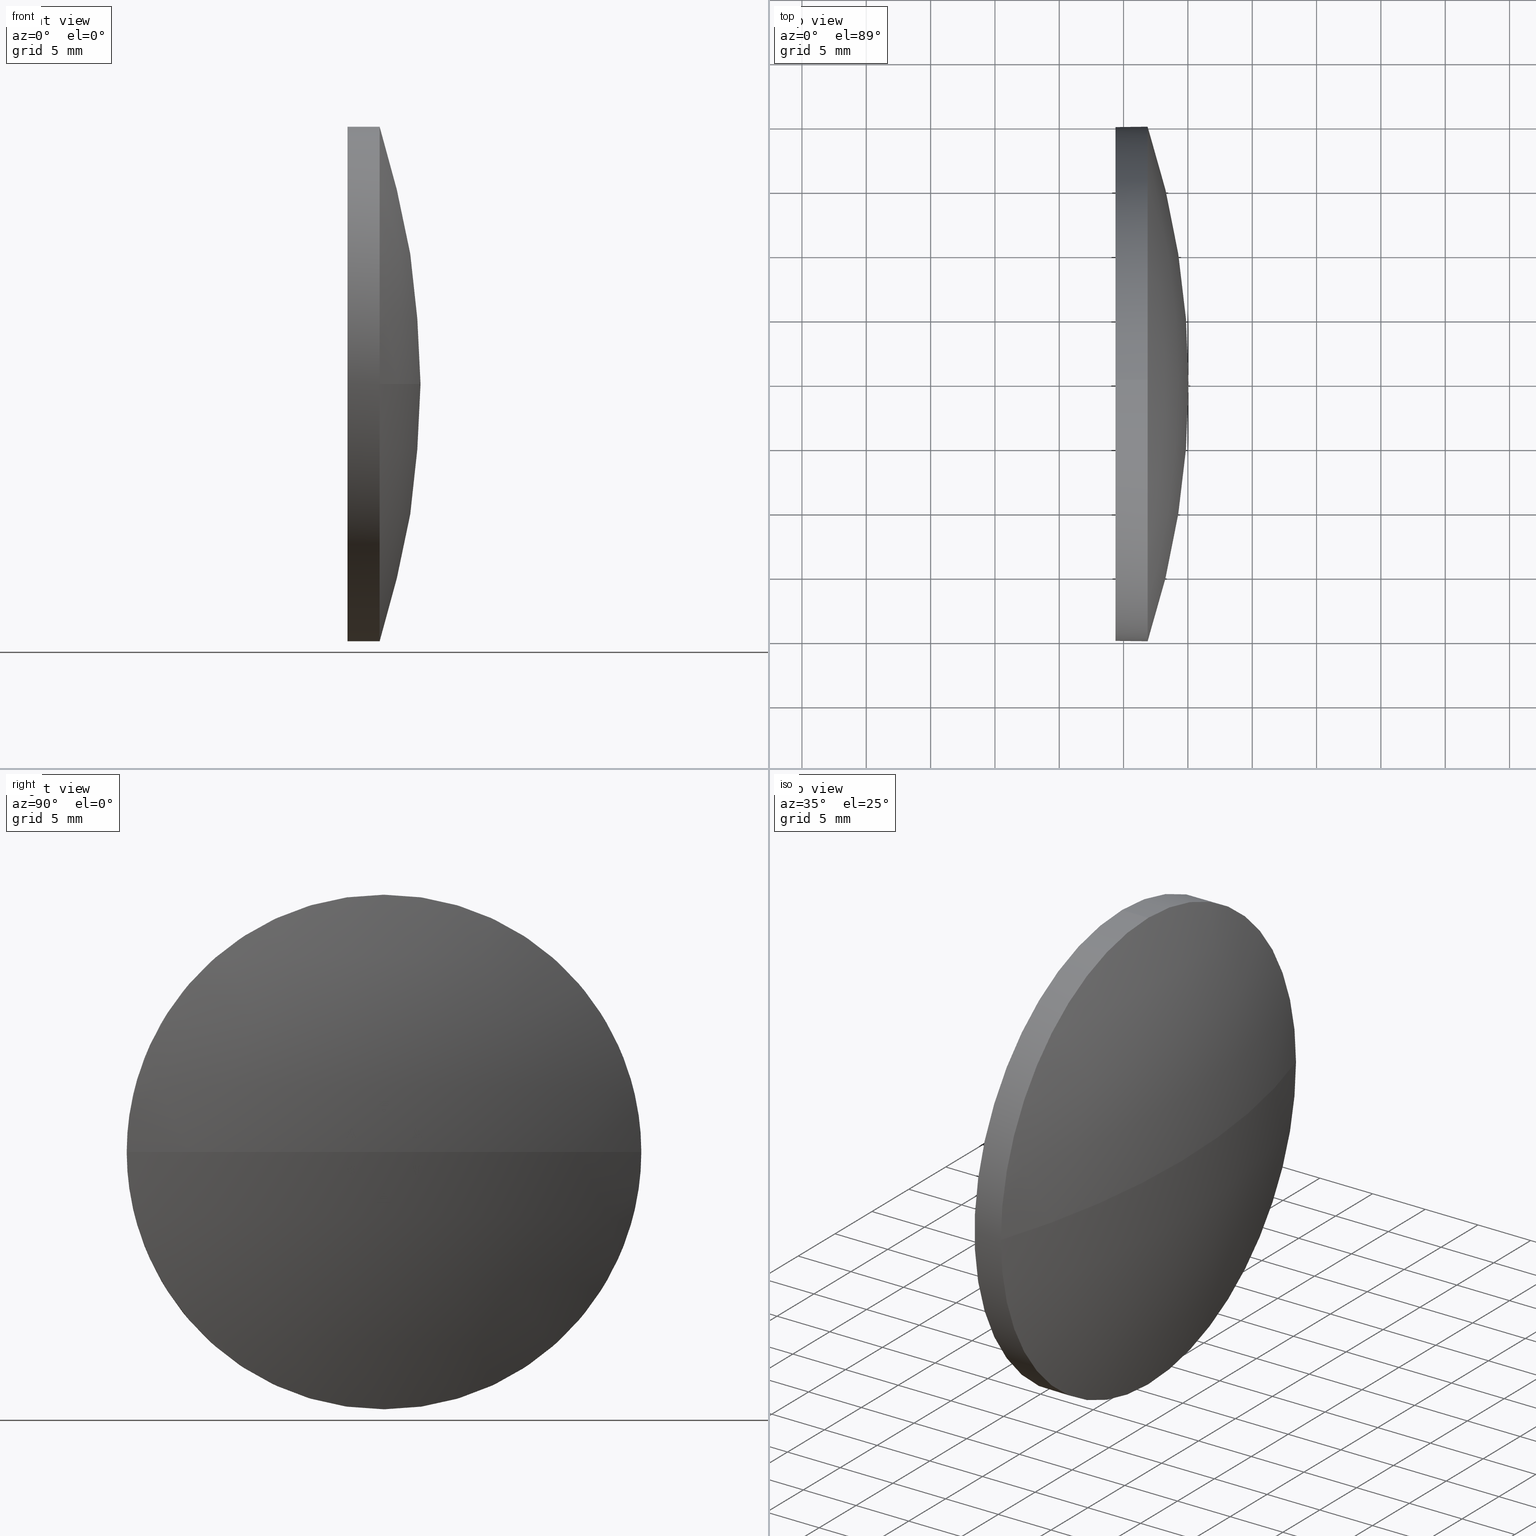
[diagram: canonical four-view strip — front | top / right | iso, engineering-drawing reading convention]
A machine part, canonical four-view strip (front | top / right | iso — engineering-drawing reading convention). The complete STEP part file that produces these views, byte-faithful:
ISO-10303-21;
HEADER;
FILE_DESCRIPTION (( 'STEP AP214' ),
    '1' );
FILE_NAME ('100231.STEP',
    '2019-05-24T07:55:41',
    ( '' ),
    ( '' ),
    'SwSTEP 2.0',
    'SolidWorks 2016',
    '' );
FILE_SCHEMA (( 'AUTOMOTIVE_DESIGN' ));
ENDSEC;

DATA;
#1 = SURFACE_STYLE_FILL_AREA ( #177 ) ;
#2 = PRODUCT ( '100231', '100231', '', ( #98 ) ) ;
#3 = VERTEX_POINT ( 'NONE', #56 ) ;
#4 = SURFACE_SIDE_STYLE ('',( #1 ) ) ;
#5 = VECTOR ( 'NONE', #137, 1000.000000000000000 ) ;
#6 = VERTEX_POINT ( 'NONE', #153 ) ;
#7 = AXIS2_PLACEMENT_3D ( 'NONE', #27, #105, #63 ) ;
#8 = ORIENTED_EDGE ( 'NONE', *, *, #154, .T. ) ;
#9 = DIRECTION ( 'NONE',  ( -1.000000000000000000, -0.0000000000000000000, -0.0000000000000000000 ) ) ;
#10 = CARTESIAN_POINT ( 'NONE',  ( 515.4038089794889900, 34.81724702676228800, 0.0000000000000000000 ) ) ;
#11 = CARTESIAN_POINT ( 'NONE',  ( 460.5656808294688700, 34.81724702676224600, 0.0000000000000000000 ) ) ;
#12 = COLOUR_RGB ( '',1.000000000000000000, 1.000000000000000000, 1.000000000000000000 ) ;
#13 = ORIENTED_EDGE ( 'NONE', *, *, #51, .T. ) ;
#14 = MECHANICAL_DESIGN_GEOMETRIC_PRESENTATION_REPRESENTATION (  '', ( #106 ), #40 ) ;
#15 = ORIENTED_EDGE ( 'NONE', *, *, #185, .F. ) ;
#16 = UNCERTAINTY_MEASURE_WITH_UNIT (LENGTH_MEASURE( 1.000000000000000100E-005 ), #149, 'distance_accuracy_value', 'NONE');
#17 = ADVANCED_FACE ( 'NONE', ( #23 ), #172, .T. ) ;
#18 = VECTOR ( 'NONE', #104, 1000.000000000000000 ) ;
#19 =( NAMED_UNIT ( * ) SI_UNIT ( $, .STERADIAN. ) SOLID_ANGLE_UNIT ( ) );
#20 = EDGE_CURVE ( 'NONE', #164, #6, #21, .T. ) ;
#21 = CIRCLE ( 'NONE', #103, 19.99999999999999600 ) ;
#22 = DIRECTION ( 'NONE',  ( -0.0000000000000000000, 0.0000000000000000000, -1.000000000000000000 ) ) ;
#23 = FACE_OUTER_BOUND ( 'NONE', #152, .T. ) ;
#24 = CARTESIAN_POINT ( 'NONE',  ( 519.3687625904749400, 34.81724702676228800, 0.0000000000000000000 ) ) ;
#25 = PRESENTATION_LAYER_ASSIGNMENT (  '', '', ( #106 ) ) ;
#26 = DIRECTION ( 'NONE',  ( 0.0000000000000000000, 0.0000000000000000000, 1.000000000000000000 ) ) ;
#27 = CARTESIAN_POINT ( 'NONE',  ( 460.5656808294688700, 34.81724702676224600, 0.0000000000000000000 ) ) ;
#28 = DIRECTION ( 'NONE',  ( 0.0000000000000000000, 0.0000000000000000000, 1.000000000000000000 ) ) ;
#29 = ADVANCED_BREP_SHAPE_REPRESENTATION ( '100231', ( #181, #71 ), #55 ) ;
#30 = APPLICATION_PROTOCOL_DEFINITION ( 'draft international standard', 'automotive_design', 1998, #47 ) ;
#31 = PRODUCT_DEFINITION ( 'δ֪', '', #178, #125 ) ;
#32 = FILL_AREA_STYLE_COLOUR ( '', #157 ) ;
#33 = SURFACE_STYLE_USAGE ( .BOTH. , #4 ) ;
#34 = DIRECTION ( 'NONE',  ( -0.0000000000000000000, 0.0000000000000000000, 1.000000000000000000 ) ) ;
#35 = AXIS2_PLACEMENT_3D ( 'NONE', #36, #179, #78 ) ;
#36 = CARTESIAN_POINT ( 'NONE',  ( 521.8687625904749400, 34.81724702676228800, 0.0000000000000000000 ) ) ;
#37 = PRESENTATION_STYLE_ASSIGNMENT (( #60 ) ) ;
#38 = FACE_OUTER_BOUND ( 'NONE', #83, .T. ) ;
#39 = ORIENTED_EDGE ( 'NONE', *, *, #97, .F. ) ;
#40 =( GEOMETRIC_REPRESENTATION_CONTEXT ( 3 ) GLOBAL_UNCERTAINTY_ASSIGNED_CONTEXT ( ( #16 ) ) GLOBAL_UNIT_ASSIGNED_CONTEXT ( ( #149, #102, #176 ) ) REPRESENTATION_CONTEXT ( 'NONE', 'WORKASPACE' ) );
#41 = APPLICATION_CONTEXT ( 'automotive_design' ) ;
#42 = ADVANCED_FACE ( 'NONE', ( #167 ), #151, .T. ) ;
#43 = LINE ( 'NONE', #91, #5 ) ;
#44 = CARTESIAN_POINT ( 'NONE',  ( 0.0000000000000000000, 0.0000000000000000000, 0.0000000000000000000 ) ) ;
#45 = ORIENTED_EDGE ( 'NONE', *, *, #185, .T. ) ;
#46 = EDGE_CURVE ( 'NONE', #169, #164, #158, .T. ) ;
#47 = APPLICATION_CONTEXT ( 'automotive_design' ) ;
#48 = ORIENTED_EDGE ( 'NONE', *, *, #20, .T. ) ;
#49 = CARTESIAN_POINT ( 'NONE',  ( 521.8687625904749400, 34.81724702676228800, 19.99999999999999600 ) ) ;
#50 = CIRCLE ( 'NONE', #123, 19.99999999999999600 ) ;
#51 = EDGE_CURVE ( 'NONE', #3, #132, #165, .T. ) ;
#52 = ORIENTED_EDGE ( 'NONE', *, *, #74, .T. ) ;
#53 = CARTESIAN_POINT ( 'NONE',  ( 521.8687625904749400, 34.81724702676228800, 0.0000000000000000000 ) ) ;
#54 = EDGE_LOOP ( 'NONE', ( #159, #96, #117, #160 ) ) ;
#55 =( GEOMETRIC_REPRESENTATION_CONTEXT ( 3 ) GLOBAL_UNCERTAINTY_ASSIGNED_CONTEXT ( ( #111 ) ) GLOBAL_UNIT_ASSIGNED_CONTEXT ( ( #133, #87, #68 ) ) REPRESENTATION_CONTEXT ( 'NONE', 'WORKASPACE' ) );
#56 = CARTESIAN_POINT ( 'NONE',  ( 521.8687625904749400, 54.81724702676223900, 0.0000000000000000000 ) ) ;
#57 = CIRCLE ( 'NONE', #61, 64.48308176100611900 ) ;
#58 = AXIS2_PLACEMENT_3D ( 'NONE', #108, #182, #170 ) ;
#59 = CARTESIAN_POINT ( 'NONE',  ( 519.3687625904749400, 34.81724702676228800, 0.0000000000000000000 ) ) ;
#60 = SURFACE_STYLE_USAGE ( .BOTH. , #99 ) ;
#61 = AXIS2_PLACEMENT_3D ( 'NONE', #146, #90, #147 ) ;
#62 = DIRECTION ( 'NONE',  ( 1.000000000000000000, 0.0000000000000000000, 0.0000000000000000000 ) ) ;
#63 = DIRECTION ( 'NONE',  ( 0.0000000000000000000, 1.000000000000000000, 0.0000000000000000000 ) ) ;
#64 = AXIS2_PLACEMENT_3D ( 'NONE', #11, #34, #150 ) ;
#65 = CARTESIAN_POINT ( 'NONE',  ( 521.8687625904749400, 34.81724702676228800, 0.0000000000000000000 ) ) ;
#66 = STYLED_ITEM ( 'NONE', ( #37 ), #29 ) ;
#67 = ADVANCED_FACE ( 'NONE', ( #126 ), #161, .T. ) ;
#68 =( NAMED_UNIT ( * ) SI_UNIT ( $, .STERADIAN. ) SOLID_ANGLE_UNIT ( ) );
#69 = ADVANCED_FACE ( 'NONE', ( #114 ), #94, .F. ) ;
#70 = EDGE_LOOP ( 'NONE', ( #48, #45 ) ) ;
#71 = AXIS2_PLACEMENT_3D ( 'NONE', #44, #186, #113 ) ;
#72 = SURFACE_STYLE_FILL_AREA ( #100 ) ;
#73 = FILL_AREA_STYLE_COLOUR ( '', #12 ) ;
#74 = EDGE_CURVE ( 'NONE', #169, #3, #86, .T. ) ;
#75 = CYLINDRICAL_SURFACE ( 'NONE', #180, 19.99999999999999600 ) ;
#76 = CARTESIAN_POINT ( 'NONE',  ( 515.4038089794889900, 34.81724702676228800, 0.0000000000000000000 ) ) ;
#77 = VERTEX_POINT ( 'NONE', #183 ) ;
#78 = DIRECTION ( 'NONE',  ( 0.0000000000000000000, 0.0000000000000000000, 1.000000000000000000 ) ) ;
#79 =( GEOMETRIC_REPRESENTATION_CONTEXT ( 3 ) GLOBAL_UNCERTAINTY_ASSIGNED_CONTEXT ( ( #163 ) ) GLOBAL_UNIT_ASSIGNED_CONTEXT ( ( #136, #173, #19 ) ) REPRESENTATION_CONTEXT ( 'NONE', 'WORKASPACE' ) );
#80 = DIRECTION ( 'NONE',  ( -1.000000000000000000, -0.0000000000000000000, -0.0000000000000000000 ) ) ;
#81 = DIRECTION ( 'NONE',  ( 0.0000000000000000000, 0.0000000000000000000, 1.000000000000000000 ) ) ;
#82 = CIRCLE ( 'NONE', #64, 64.48308176100609000 ) ;
#83 = EDGE_LOOP ( 'NONE', ( #121, #135, #162, #141, #15 ) ) ;
#84 = AXIS2_PLACEMENT_3D ( 'NONE', #10, #140, #26 ) ;
#85 = CLOSED_SHELL ( 'NONE', ( #42, #17, #67, #144, #69 ) ) ;
#86 = CIRCLE ( 'NONE', #35, 19.99999999999999600 ) ;
#87 =( NAMED_UNIT ( * ) PLANE_ANGLE_UNIT ( ) SI_UNIT ( $, .RADIAN. ) );
#88 = EDGE_LOOP ( 'NONE', ( #13, #8, #122, #109, #52 ) ) ;
#89 = MECHANICAL_DESIGN_GEOMETRIC_PRESENTATION_REPRESENTATION (  '', ( #66 ), #79 ) ;
#90 = DIRECTION ( 'NONE',  ( 0.0000000000000000000, 1.224646799147353200E-016, -1.000000000000000000 ) ) ;
#91 = CARTESIAN_POINT ( 'NONE',  ( 515.4038089794889900, 34.81724702676228800, -19.99999999999999600 ) ) ;
#92 = DIRECTION ( 'NONE',  ( -1.000000000000000000, -0.0000000000000000000, -0.0000000000000000000 ) ) ;
#93 = VERTEX_POINT ( 'NONE', #155 ) ;
#94 = PLANE ( 'NONE',  #115 ) ;
#95 = CARTESIAN_POINT ( 'NONE',  ( 519.3687625904749400, 34.81724702676228800, 0.0000000000000000000 ) ) ;
#96 = ORIENTED_EDGE ( 'NONE', *, *, #110, .T. ) ;
#97 = EDGE_CURVE ( 'NONE', #132, #77, #119, .T. ) ;
#98 = PRODUCT_CONTEXT ( 'NONE', #41, 'mechanical' ) ;
#99 = SURFACE_SIDE_STYLE ('',( #72 ) ) ;
#100 = FILL_AREA_STYLE ('',( #32 ) ) ;
#101 = AXIS2_PLACEMENT_3D ( 'NONE', #53, #124, #81 ) ;
#102 =( NAMED_UNIT ( * ) PLANE_ANGLE_UNIT ( ) SI_UNIT ( $, .RADIAN. ) );
#103 = AXIS2_PLACEMENT_3D ( 'NONE', #24, #80, #138 ) ;
#104 = DIRECTION ( 'NONE',  ( -1.000000000000000000, -0.0000000000000000000, -0.0000000000000000000 ) ) ;
#105 = DIRECTION ( 'NONE',  ( -0.0000000000000000000, 0.0000000000000000000, -1.000000000000000000 ) ) ;
#106 = STYLED_ITEM ( 'NONE', ( #139 ), #181 ) ;
#107 = CARTESIAN_POINT ( 'NONE',  ( 460.5656808294688700, 34.81724702676224600, 0.0000000000000000000 ) ) ;
#108 = CARTESIAN_POINT ( 'NONE',  ( 521.8687625904749400, 34.81724702676228800, 0.0000000000000000000 ) ) ;
#109 = ORIENTED_EDGE ( 'NONE', *, *, #46, .F. ) ;
#110 = EDGE_CURVE ( 'NONE', #93, #3, #82, .T. ) ;
#111 = UNCERTAINTY_MEASURE_WITH_UNIT (LENGTH_MEASURE( 1.000000000000000100E-005 ), #133, 'distance_accuracy_value', 'NONE');
#112 = CIRCLE ( 'NONE', #118, 19.99999999999999600 ) ;
#113 = DIRECTION ( 'NONE',  ( 1.000000000000000000, 0.0000000000000000000, 0.0000000000000000000 ) ) ;
#114 = FACE_OUTER_BOUND ( 'NONE', #70, .T. ) ;
#115 = AXIS2_PLACEMENT_3D ( 'NONE', #95, #62, #166 ) ;
#116 = ORIENTED_EDGE ( 'NONE', *, *, #110, .F. ) ;
#117 = ORIENTED_EDGE ( 'NONE', *, *, #74, .F. ) ;
#118 = AXIS2_PLACEMENT_3D ( 'NONE', #59, #143, #175 ) ;
#119 = CIRCLE ( 'NONE', #58, 19.99999999999999600 ) ;
#120 = SHAPE_DEFINITION_REPRESENTATION ( #134, #29 ) ;
#121 = ORIENTED_EDGE ( 'NONE', *, *, #154, .F. ) ;
#122 = ORIENTED_EDGE ( 'NONE', *, *, #20, .F. ) ;
#123 = AXIS2_PLACEMENT_3D ( 'NONE', #65, #9, #171 ) ;
#124 = DIRECTION ( 'NONE',  ( -1.000000000000000000, -0.0000000000000000000, -0.0000000000000000000 ) ) ;
#125 = PRODUCT_DEFINITION_CONTEXT ( 'detailed design', #47, 'design' ) ;
#126 = FACE_OUTER_BOUND ( 'NONE', #54, .T. ) ;
#127 = ORIENTED_EDGE ( 'NONE', *, *, #174, .T. ) ;
#128 = EDGE_CURVE ( 'NONE', #77, #169, #50, .T. ) ;
#129 = ORIENTED_EDGE ( 'NONE', *, *, #51, .F. ) ;
#130 = PRESENTATION_LAYER_ASSIGNMENT (  '', '', ( #66 ) ) ;
#131 = PRODUCT_RELATED_PRODUCT_CATEGORY ( 'part', '', ( #2 ) ) ;
#132 = VERTEX_POINT ( 'NONE', #184 ) ;
#133 =( LENGTH_UNIT ( ) NAMED_UNIT ( * ) SI_UNIT ( .MILLI., .METRE. ) );
#134 = PRODUCT_DEFINITION_SHAPE ( 'NONE', 'NONE',  #31 ) ;
#135 = ORIENTED_EDGE ( 'NONE', *, *, #97, .T. ) ;
#136 =( LENGTH_UNIT ( ) NAMED_UNIT ( * ) SI_UNIT ( .MILLI., .METRE. ) );
#137 = DIRECTION ( 'NONE',  ( -1.000000000000000000, -0.0000000000000000000, -0.0000000000000000000 ) ) ;
#138 = DIRECTION ( 'NONE',  ( 0.0000000000000000000, 0.0000000000000000000, 1.000000000000000000 ) ) ;
#139 = PRESENTATION_STYLE_ASSIGNMENT (( #33 ) ) ;
#140 = DIRECTION ( 'NONE',  ( -1.000000000000000000, -0.0000000000000000000, -0.0000000000000000000 ) ) ;
#141 = ORIENTED_EDGE ( 'NONE', *, *, #46, .T. ) ;
#142 = AXIS2_PLACEMENT_3D ( 'NONE', #107, #22, #156 ) ;
#143 = DIRECTION ( 'NONE',  ( -1.000000000000000000, -0.0000000000000000000, -0.0000000000000000000 ) ) ;
#144 = ADVANCED_FACE ( 'NONE', ( #38 ), #75, .T. ) ;
#145 = APPLICATION_PROTOCOL_DEFINITION ( 'draft international standard', 'automotive_design', 1998, #41 ) ;
#146 = CARTESIAN_POINT ( 'NONE',  ( 460.5656808294688700, 34.81724702676224600, 0.0000000000000000000 ) ) ;
#147 = DIRECTION ( 'NONE',  ( 0.0000000000000000000, 1.000000000000000000, 1.224646799147353200E-016 ) ) ;
#148 = CARTESIAN_POINT ( 'NONE',  ( 519.3687625904749400, 34.81724702676228800, 19.99999999999999600 ) ) ;
#149 =( LENGTH_UNIT ( ) NAMED_UNIT ( * ) SI_UNIT ( .MILLI., .METRE. ) );
#150 = DIRECTION ( 'NONE',  ( 1.000000000000000000, 0.0000000000000000000, 0.0000000000000000000 ) ) ;
#151 = CYLINDRICAL_SURFACE ( 'NONE', #84, 19.99999999999999600 ) ;
#152 = EDGE_LOOP ( 'NONE', ( #116, #127, #39, #129 ) ) ;
#153 = CARTESIAN_POINT ( 'NONE',  ( 519.3687625904749400, 34.81724702676228800, -19.99999999999999600 ) ) ;
#154 = EDGE_CURVE ( 'NONE', #132, #6, #43, .T. ) ;
#155 = CARTESIAN_POINT ( 'NONE',  ( 525.0487625904748900, 34.81724702676225300, 0.0000000000000000000 ) ) ;
#156 = DIRECTION ( 'NONE',  ( 0.0000000000000000000, 1.000000000000000000, 0.0000000000000000000 ) ) ;
#157 = COLOUR_RGB ( '',1.000000000000000000, 1.000000000000000000, 1.000000000000000000 ) ;
#158 = LINE ( 'NONE', #168, #18 ) ;
#159 = ORIENTED_EDGE ( 'NONE', *, *, #174, .F. ) ;
#160 = ORIENTED_EDGE ( 'NONE', *, *, #128, .F. ) ;
#161 = SPHERICAL_SURFACE ( 'NONE', #7, 64.48308176100611900 ) ;
#162 = ORIENTED_EDGE ( 'NONE', *, *, #128, .T. ) ;
#163 = UNCERTAINTY_MEASURE_WITH_UNIT (LENGTH_MEASURE( 1.000000000000000100E-005 ), #136, 'distance_accuracy_value', 'NONE');
#164 = VERTEX_POINT ( 'NONE', #148 ) ;
#165 = CIRCLE ( 'NONE', #101, 19.99999999999999600 ) ;
#166 = DIRECTION ( 'NONE',  ( 0.0000000000000000000, 0.0000000000000000000, -1.000000000000000000 ) ) ;
#167 = FACE_OUTER_BOUND ( 'NONE', #88, .T. ) ;
#168 = CARTESIAN_POINT ( 'NONE',  ( 515.4038089794889900, 34.81724702676228800, 19.99999999999999600 ) ) ;
#169 = VERTEX_POINT ( 'NONE', #49 ) ;
#170 = DIRECTION ( 'NONE',  ( 0.0000000000000000000, 0.0000000000000000000, 1.000000000000000000 ) ) ;
#171 = DIRECTION ( 'NONE',  ( 0.0000000000000000000, 0.0000000000000000000, 1.000000000000000000 ) ) ;
#172 = SPHERICAL_SURFACE ( 'NONE', #142, 64.48308176100611900 ) ;
#173 =( NAMED_UNIT ( * ) PLANE_ANGLE_UNIT ( ) SI_UNIT ( $, .RADIAN. ) );
#174 = EDGE_CURVE ( 'NONE', #93, #77, #57, .T. ) ;
#175 = DIRECTION ( 'NONE',  ( 0.0000000000000000000, 0.0000000000000000000, 1.000000000000000000 ) ) ;
#176 =( NAMED_UNIT ( * ) SI_UNIT ( $, .STERADIAN. ) SOLID_ANGLE_UNIT ( ) );
#177 = FILL_AREA_STYLE ('',( #73 ) ) ;
#178 = PRODUCT_DEFINITION_FORMATION_WITH_SPECIFIED_SOURCE ( '�κ�', '', #2, .NOT_KNOWN. ) ;
#179 = DIRECTION ( 'NONE',  ( -1.000000000000000000, -0.0000000000000000000, -0.0000000000000000000 ) ) ;
#180 = AXIS2_PLACEMENT_3D ( 'NONE', #76, #92, #28 ) ;
#181 = MANIFOLD_SOLID_BREP ( '��ת1', #85 ) ;
#182 = DIRECTION ( 'NONE',  ( -1.000000000000000000, -0.0000000000000000000, -0.0000000000000000000 ) ) ;
#183 = CARTESIAN_POINT ( 'NONE',  ( 521.8687625904749400, 14.81724702676230100, -2.449293598294699800E-015 ) ) ;
#184 = CARTESIAN_POINT ( 'NONE',  ( 521.8687625904749400, 34.81724702676228800, -19.99999999999999600 ) ) ;
#185 = EDGE_CURVE ( 'NONE', #6, #164, #112, .T. ) ;
#186 = DIRECTION ( 'NONE',  ( 0.0000000000000000000, 0.0000000000000000000, 1.000000000000000000 ) ) ;
ENDSEC;
END-ISO-10303-21;
